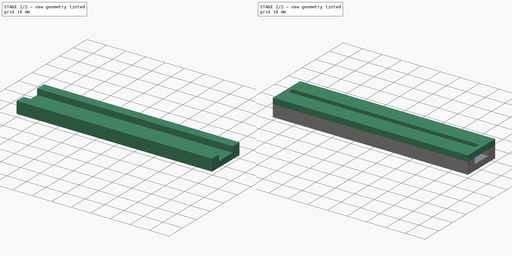
[diagram: build sequence overview — one tinted view per stage of 2, left to right]
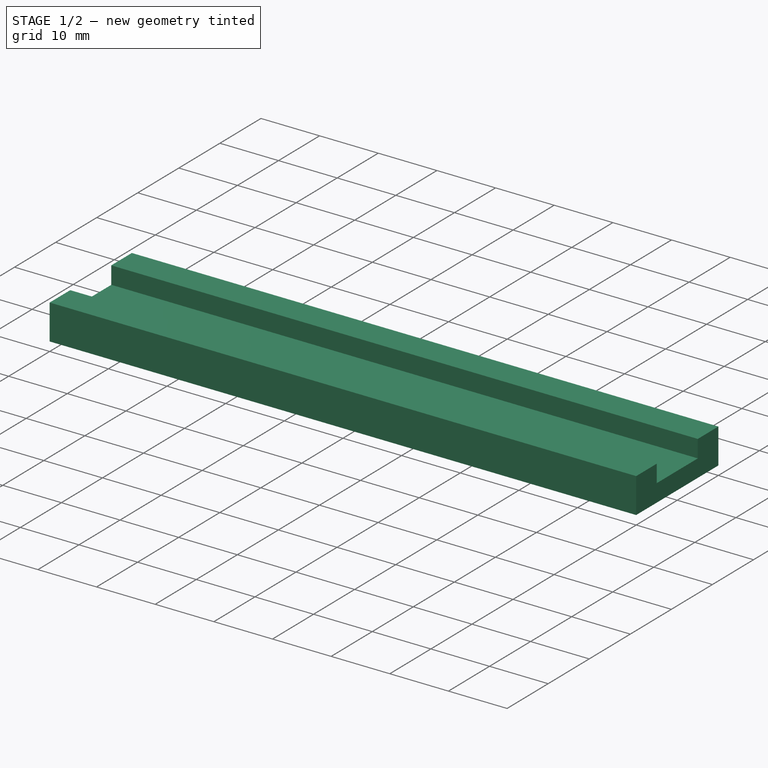
[diagram: stage 1 of 2 — iso view after this stage's code; geometry added in this stage tinted green]
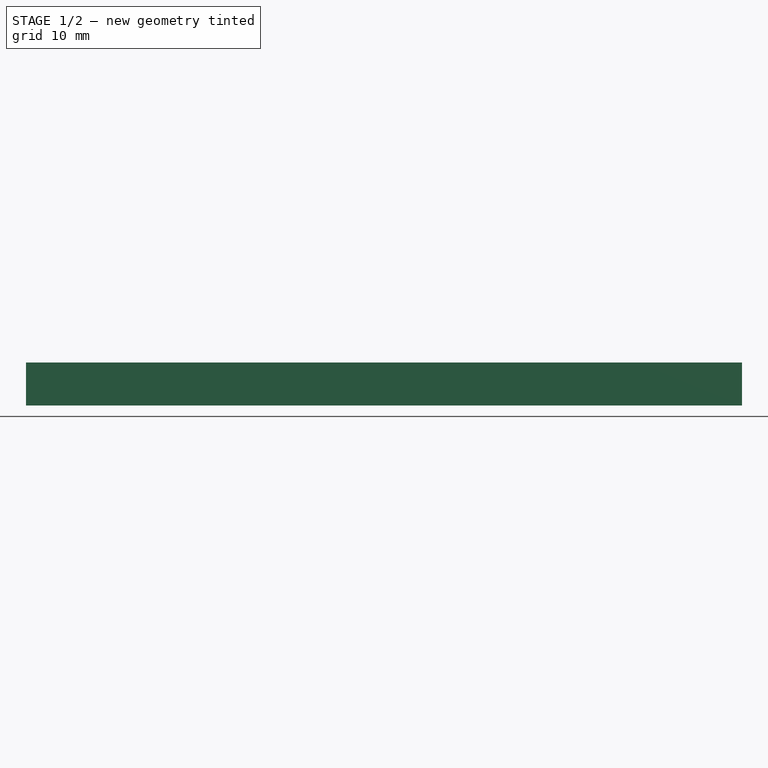
[diagram: stage 1 of 2 — front view after this stage's code; geometry added in this stage tinted green]
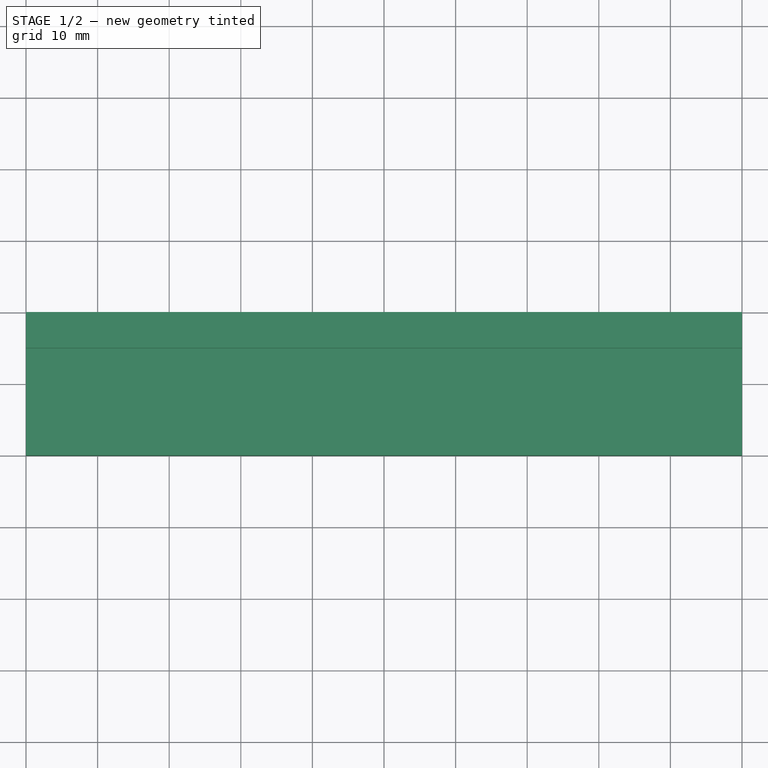
[diagram: stage 1 of 2 — top view after this stage's code; geometry added in this stage tinted green]
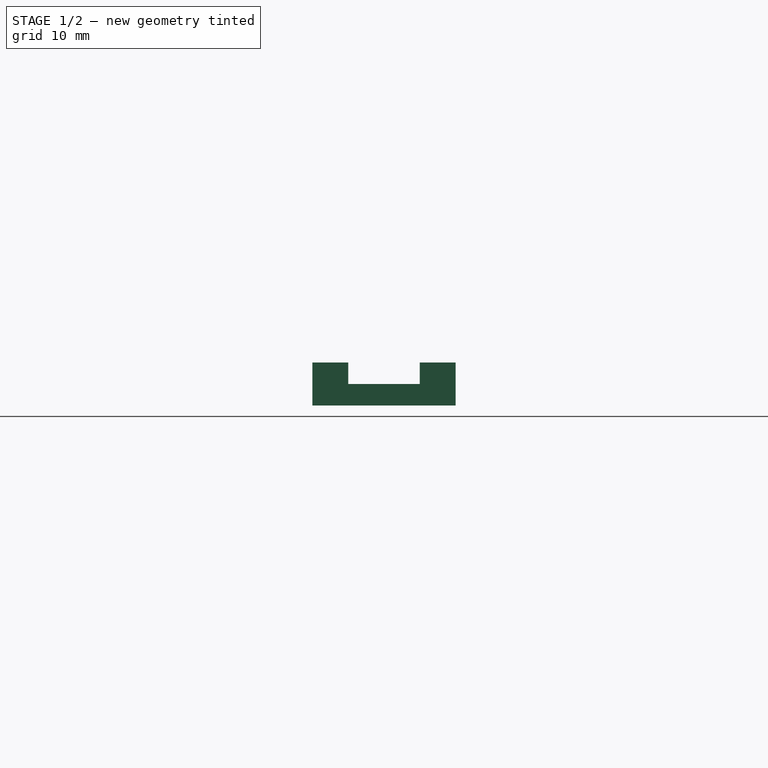
[diagram: stage 1 of 2 — right view after this stage's code; geometry added in this stage tinted green]
FCSTD DOCUMENT  (FreeCAD 0.17R13541 (Git))
Label: Acry-Base-6-good-sketched-sandwich-pre-sliced
License: All rights reserved
LicenseURL: http://en.wikipedia.org/wiki/All_rights_reserved
objects: Sketcher::SketchObject×3, PartDesign::Pad×3, PartDesign::Body×1, App::Part×1
note: 10 computed .brp shape members not serialized (recipe doc carries the construction recipe); baked Part::Feature solids carry a one-line shape summary decoded from their .brp

FEATURE [Sketcher::SketchObject] Sketch
  MapMode = 5
  Support = -> [XY_Plane001]
  sketch-geometry (6):
    g0: LineSegment StartX=-50 StartY=10 StartZ=0 EndX=50 EndY=10 EndZ=0
    g1: LineSegment StartX=50 StartY=10 StartZ=0 EndX=50 EndY=-10 EndZ=0
    g2: LineSegment StartX=50 StartY=-10 StartZ=0 EndX=-50 EndY=-10 EndZ=0
    g3: LineSegment StartX=-50 StartY=-10 StartZ=0 EndX=-50 EndY=10 EndZ=0
    g4: GeomPoint X=0 Y=-10 Z=0
    g5: GeomPoint X=50 Y=0 Z=0
  constraints (16):
    c: Coincident(g0,g1)
    c: Coincident(g1,g2)
    c: Coincident(g2,g3)
    c: Coincident(g3,g0)
    c: Horizontal(g0)
    c: Horizontal(g2)
    c: Vertical(g1)
    c: Vertical(g3)
    c: Distance(g3) = 20
    c: Distance(g0) = 100
    c: PointOnObject(g4,g2)
    c: Symmetric(g1,g2,g4)
    c: PointOnObject(g5,g1)
    c: Symmetric(g0,g1,g5)
    c: PointOnObject(g5,g-1)
    c: PointOnObject(g4,g-2)
FEATURE [PartDesign::Pad] Pad
  Length = 3
  Length2 = 100
  Profile = -> Sketch
  Type = 0
FEATURE [Sketcher::SketchObject] Sketch001
  ExternalGeometry = -> [Pad]
  MapMode = 5
  Placement = pos=(0,0,3) rot=(0,0,1;0rad)
  Support = -> [Pad]
  sketch-geometry (8):
    g0: LineSegment StartX=-50 StartY=10 StartZ=0 EndX=50 EndY=10 EndZ=0
    g1: LineSegment StartX=50 StartY=10 StartZ=0 EndX=50 EndY=5 EndZ=0
    g2: LineSegment StartX=50 StartY=5 StartZ=0 EndX=-50 EndY=5 EndZ=0
    g3: LineSegment StartX=-50 StartY=5 StartZ=0 EndX=-50 EndY=10 EndZ=0
    g4: LineSegment StartX=-50 StartY=-5 StartZ=0 EndX=50 EndY=-5 EndZ=0
    g5: LineSegment StartX=50 StartY=-5 StartZ=0 EndX=50 EndY=-10 EndZ=0
    g6: LineSegment StartX=50 StartY=-10 StartZ=0 EndX=-50 EndY=-10 EndZ=0
    g7: LineSegment StartX=-50 StartY=-10 StartZ=0 EndX=-50 EndY=-5 EndZ=0
  constraints (22):
    c: Coincident(g0,g1)
    c: Coincident(g1,g2)
    c: Coincident(g2,g3)
    c: Coincident(g3,g0)
    c: Horizontal(g0)
    c: Horizontal(g2)
    c: Vertical(g1)
    c: Vertical(g3)
    c: Distance(g1) = 5
    c: Coincident(g0,g-4)
    c: Coincident(g0,g-6)
    c: Coincident(g4,g5)
    c: Coincident(g5,g6)
    c: Coincident(g6,g7)
    c: Coincident(g7,g4)
    c: Horizontal(g4)
    c: Horizontal(g6)
    c: Vertical(g5)
    c: Vertical(g7)
    c: Distance(g5) = 5
    c: Coincident(g6,g-5)
    c: Coincident(g5,g-6)
FEATURE [PartDesign::Pad] Pad001
  BaseFeature = -> Pad
  Length = 3
  Length2 = 100
  Profile = -> Sketch001
  Type = 0
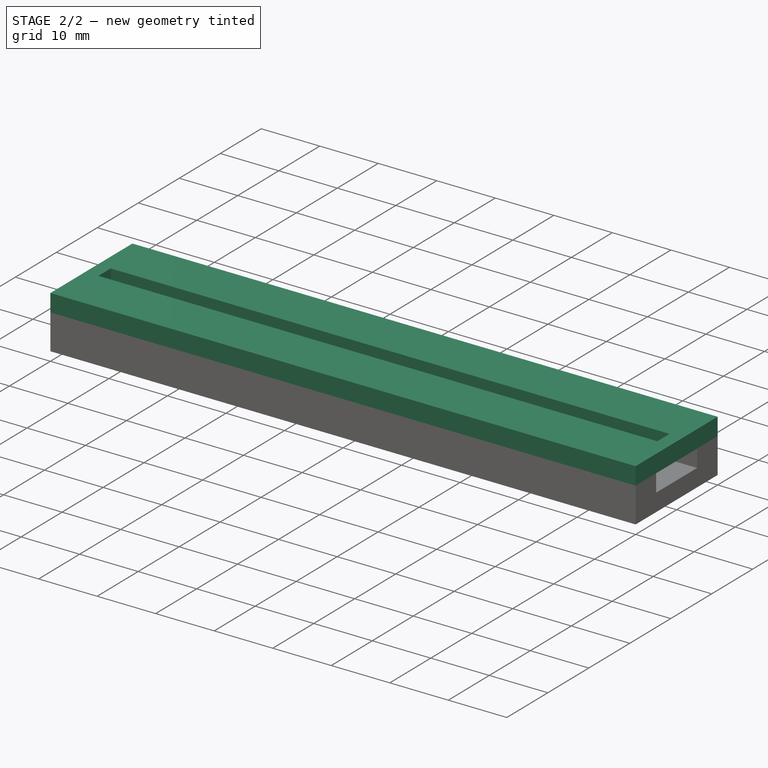
[diagram: stage 2 of 2 — iso view after this stage's code; geometry added in this stage tinted green]
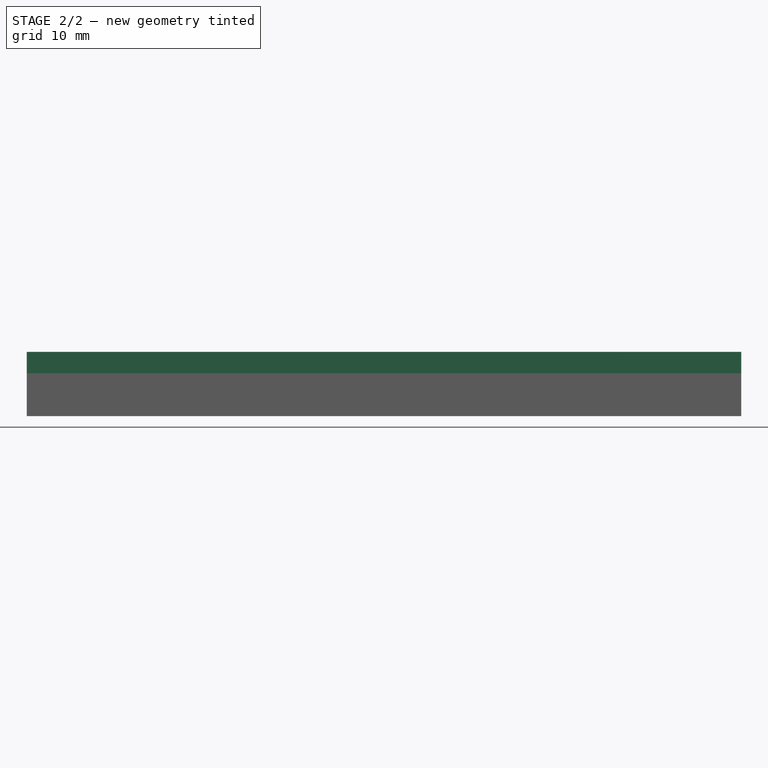
[diagram: stage 2 of 2 — front view after this stage's code; geometry added in this stage tinted green]
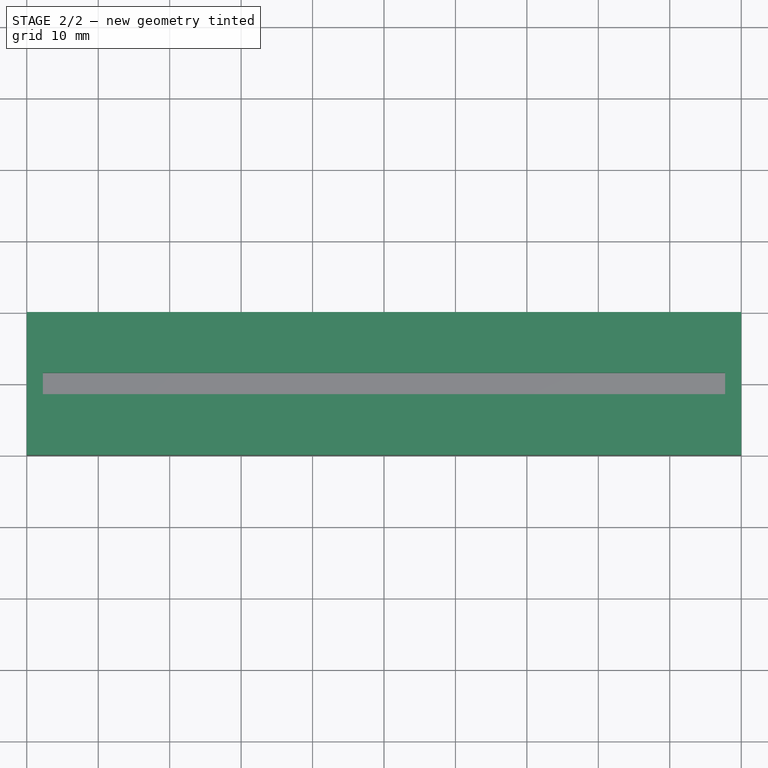
[diagram: stage 2 of 2 — top view after this stage's code; geometry added in this stage tinted green]
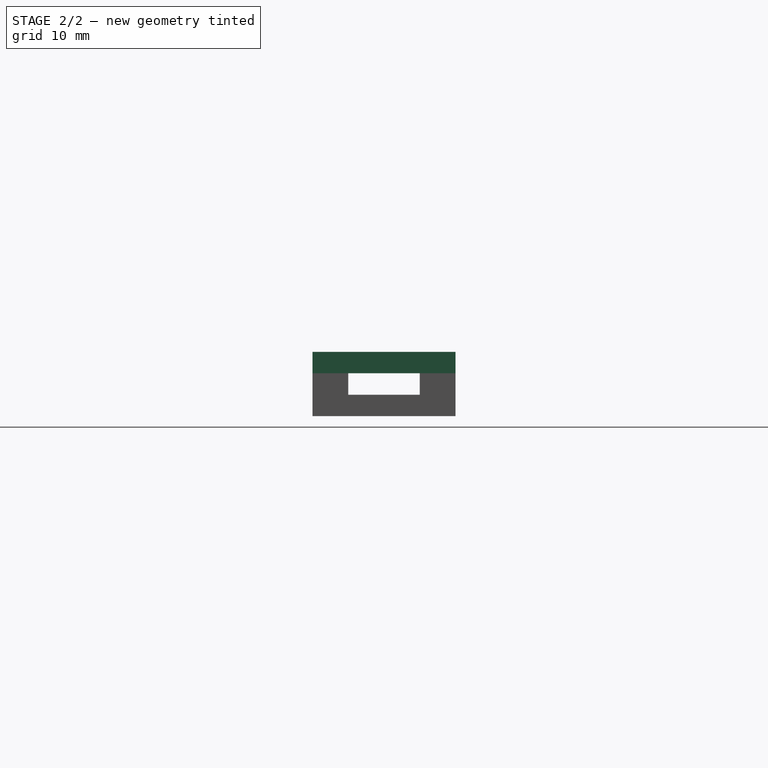
[diagram: stage 2 of 2 — right view after this stage's code; geometry added in this stage tinted green]
FEATURE [Sketcher::SketchObject] Sketch002
  ExternalGeometry = -> [Pad001]
  MapMode = 5
  Placement = pos=(0,0,6) rot=(0,0,1;0rad)
  Support = -> [Pad001]
  sketch-geometry (10):
    g0: LineSegment StartX=-50 StartY=10 StartZ=0 EndX=50 EndY=10 EndZ=0
    g1: LineSegment StartX=50 StartY=10 StartZ=0 EndX=50 EndY=-10 EndZ=0
    g2: LineSegment StartX=50 StartY=-10 StartZ=0 EndX=-50 EndY=-10 EndZ=0
    g3: LineSegment StartX=-50 StartY=-10 StartZ=0 EndX=-50 EndY=10 EndZ=0
    g4: LineSegment StartX=-47.75 StartY=1.5 StartZ=0 EndX=47.75 EndY=1.5 EndZ=0
    g5: LineSegment StartX=47.75 StartY=1.5 StartZ=0 EndX=47.75 EndY=-1.5 EndZ=0
    g6: LineSegment StartX=47.75 StartY=-1.5 StartZ=0 EndX=-47.75 EndY=-1.5 EndZ=0
    g7: LineSegment StartX=-47.75 StartY=-1.5 StartZ=0 EndX=-47.75 EndY=1.5 EndZ=0
    g8: GeomPoint X=0 Y=1.5 Z=0
    g9: GeomPoint X=-47.75 Y=0 Z=0
  constraints (27):
    c: Coincident(g0,g1)
    c: Coincident(g1,g2)
    c: Coincident(g2,g3)
    c: Coincident(g3,g0)
    c: Horizontal(g0)
    c: Horizontal(g2)
    c: Vertical(g1)
    c: Vertical(g3)
    c: Coincident(g0,g-3)
    c: Coincident(g2,g-4)
    c: Coincident(g1,g-4)
    c: Coincident(g4,g5)
    c: Coincident(g5,g6)
    c: Coincident(g6,g7)
    c: Coincident(g7,g4)
    c: Horizontal(g4)
    c: Horizontal(g6)
    c: Vertical(g5)
    c: Vertical(g7)
    c: PointOnObject(g8,g4)
    c: Symmetric(g4,g4,g8)
    c: PointOnObject(g8,g-2)
    c: Distance(g6) = 95.5
    c: Distance(g7) = 3
    c: PointOnObject(g9,g7)
    c: Symmetric(g4,g6,g9)
    c: PointOnObject(g9,g-1)
FEATURE [PartDesign::Pad] Pad002
  BaseFeature = -> Pad001
  Length = 3
  Length2 = 100
  Profile = -> Sketch002
  Type = 0
FEATURE [PartDesign::Body] Body
  Group = -> [Sketch,Pad,Sketch001,Pad001,Sketch002,Pad002]
  Origin = -> Origin001
  Tip = -> Pad002
FEATURE [App::Part] Part
  Group = -> [Body]
  License = CC BY 3.0
  LicenseURL = http://creativecommons.org/licenses/by/3.0/
  Origin = -> Origin
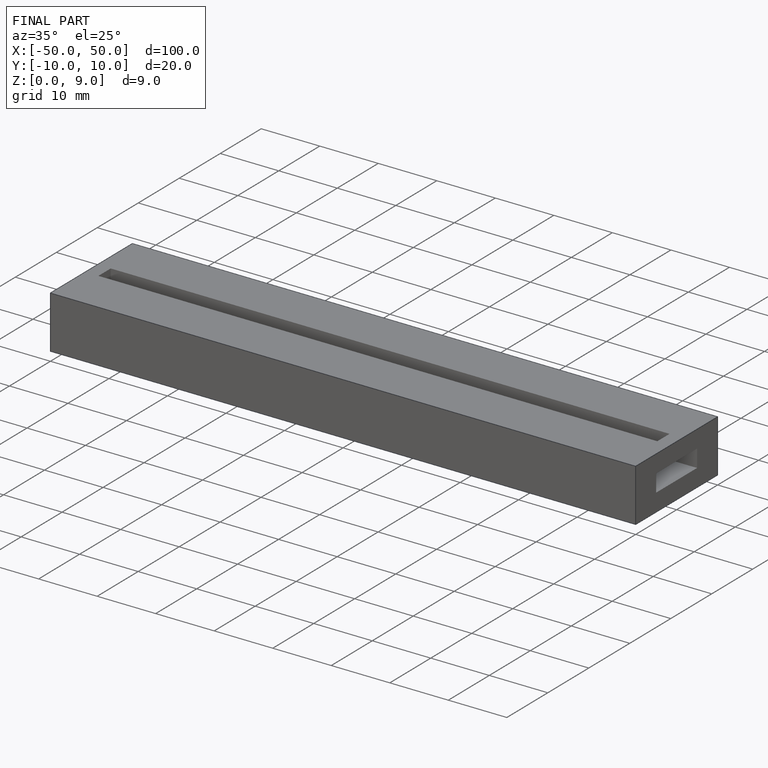
[diagram: finished part — iso view with bounding-box wireframe]
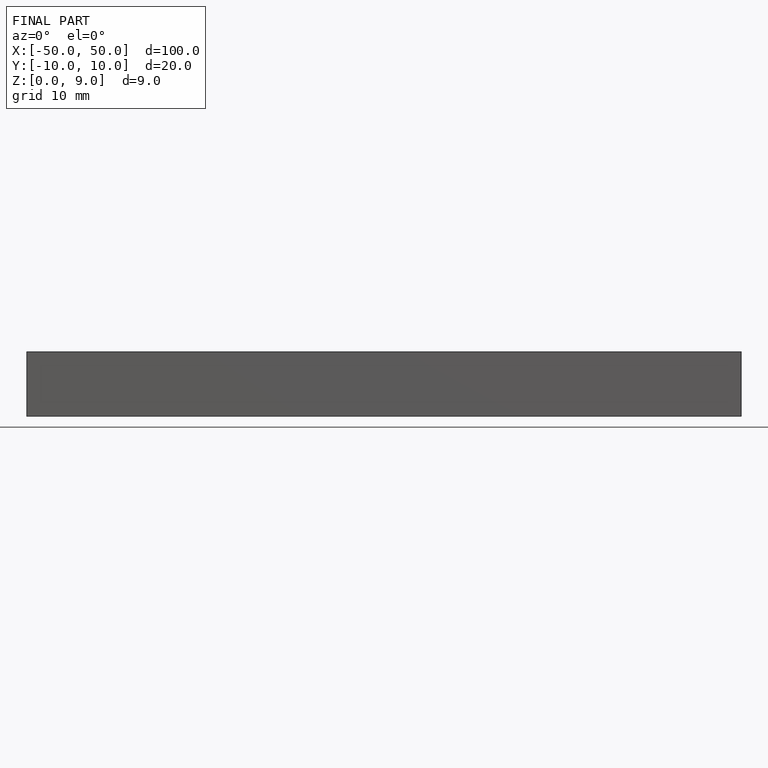
[diagram: finished part — front view with bounding-box wireframe]
